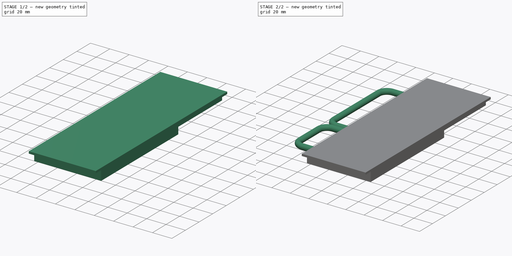
[diagram: build sequence overview — one tinted view per stage of 2, left to right]
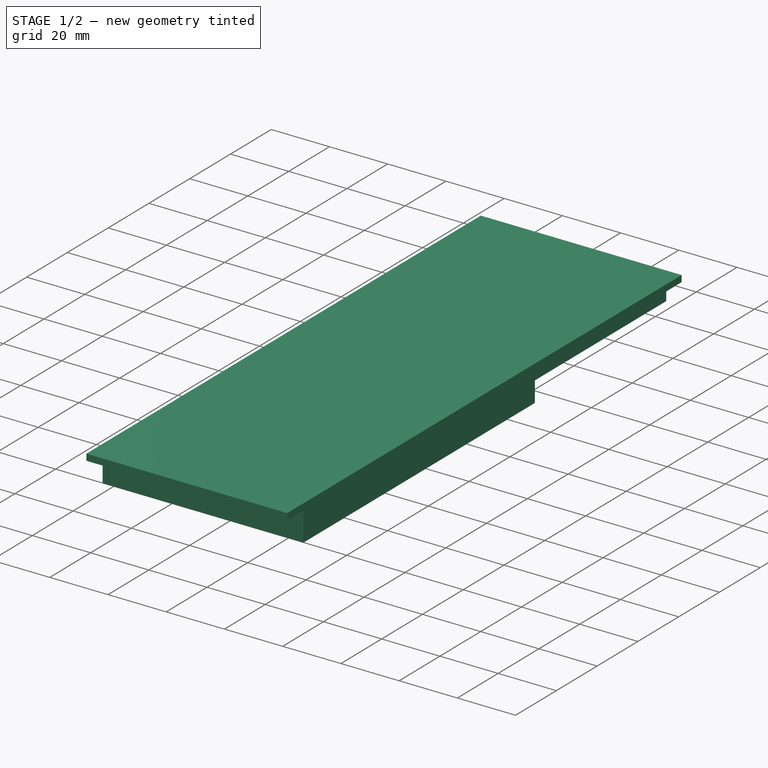
[diagram: stage 1 of 2 — iso view after this stage's code; geometry added in this stage tinted green]
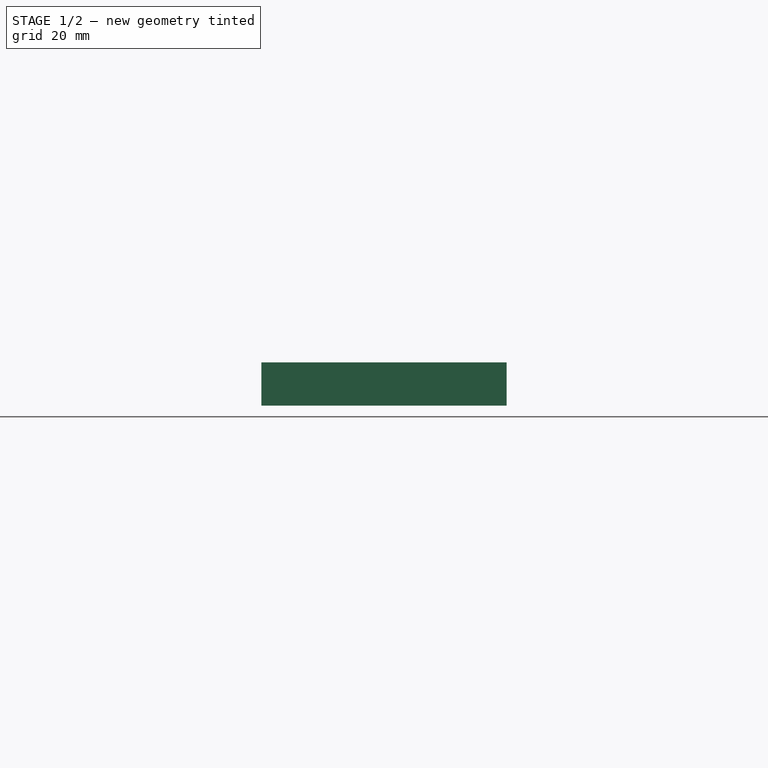
[diagram: stage 1 of 2 — front view after this stage's code; geometry added in this stage tinted green]
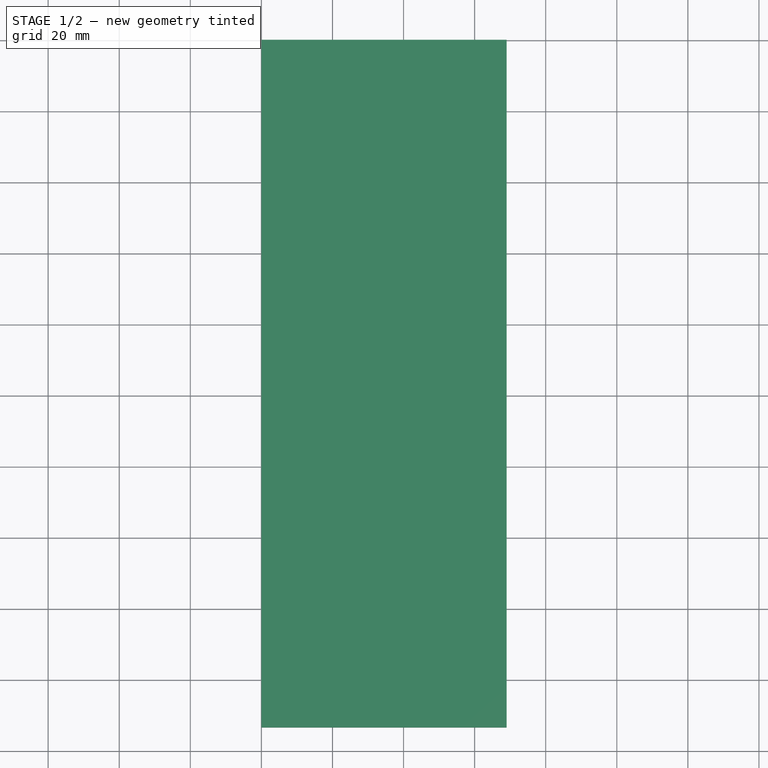
[diagram: stage 1 of 2 — top view after this stage's code; geometry added in this stage tinted green]
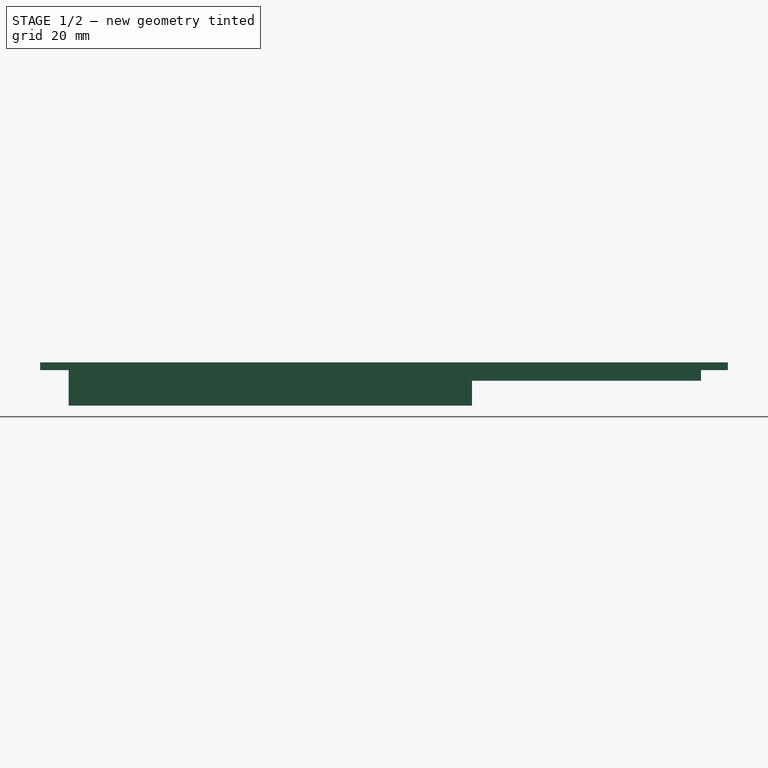
[diagram: stage 1 of 2 — right view after this stage's code; geometry added in this stage tinted green]
FCSTD DOCUMENT  (FreeCAD 0.21R33771 (Git))
Label: gpu-iron
License: All rights reserved
LicenseURL: http://en.wikipedia.org/wiki/All_rights_reserved
objects: Sketcher::SketchObject×3, PartDesign::Plane×2, PartDesign::Pad×1, PartDesign::AdditivePipe×1, PartDesign::Body×1
note: 10 computed .brp shape members not serialized (recipe doc carries the construction recipe); baked Part::Feature solids carry a one-line shape summary decoded from their .brp

FEATURE [Sketcher::SketchObject] Sketch
  FullyConstrained = true
  MapMode = 5
  Placement = pos=(0,0,0) rot=(0.57735,0.57735,0.57735;2.0944rad)
  Support = -> [YZ_Plane]
  sketch-geometry (15):
    g0: LineSegment StartX=-193.5 StartY=2.2 StartZ=0 EndX=0 EndY=2.2 EndZ=0
    g1: LineSegment StartX=0 StartY=2.2 StartZ=0 EndX=0 EndY=0 EndZ=0
    g2: LineSegment StartX=0 StartY=0 StartZ=0 EndX=-193.5 EndY=0 EndZ=0
    g3: LineSegment StartX=-193.5 StartY=0 StartZ=0 EndX=-193.5 EndY=2.2 EndZ=0
    g4: LineSegment StartX=-185.5 StartY=0 StartZ=0 EndX=-72 EndY=0 EndZ=0
    g5: LineSegment StartX=-72 StartY=0 StartZ=0 EndX=-72 EndY=-10 EndZ=0
    g6: LineSegment StartX=-72 StartY=-10 StartZ=0 EndX=-185.5 EndY=-10 EndZ=0
    g7: LineSegment StartX=-185.5 StartY=-10 StartZ=0 EndX=-185.5 EndY=0 EndZ=0
    g8: LineSegment StartX=-72 StartY=-3 StartZ=0 EndX=-7.55 EndY=-3 EndZ=0
    g9: LineSegment StartX=-7.55 StartY=-3 StartZ=0 EndX=-7.55 EndY=0 EndZ=0
    g10: LineSegment StartX=-7.55 StartY=0 StartZ=0 EndX=-72 EndY=0 EndZ=0
    g11: LineSegment StartX=-72 StartY=0 StartZ=0 EndX=-72 EndY=-3 EndZ=0
    g12: LineSegment StartX=-193.5 StartY=0 StartZ=0 EndX=-185.5 EndY=0 EndZ=0
    g13: LineSegment StartX=-72 StartY=-10 StartZ=0 EndX=-72 EndY=-3 EndZ=0
    g14: LineSegment StartX=-7.55 StartY=0 StartZ=0 EndX=0 EndY=0 EndZ=0
  constraints (42):
    c: Coincident(g0,g1)
    c: Coincident(g1,g2)
    c: Coincident(g2,g3)
    c: Coincident(g3,g0)
    c: Horizontal(g0)
    c: Horizontal(g2)
    c: Vertical(g1)
    c: Vertical(g3)
    c: DistanceY(g1,g1) = 2.2
    c: DistanceX(g0,g0) = 193.5
    c: DistanceX(g-1,g1) = 0
    c: DistanceY(g-1,g1) = 0
    c: Coincident(g4,g5)
    c: Coincident(g5,g6)
    c: Coincident(g6,g7)
    c: Coincident(g7,g4)
    c: Horizontal(g4)
    c: Horizontal(g6)
    c: Vertical(g5)
    c: Vertical(g7)
    c: PointOnObject(g4,g2)
    c: Coincident(g8,g9)
    c: Coincident(g9,g10)
    c: Coincident(g10,g11)
    c: Coincident(g11,g8)
    c: Horizontal(g8)
    c: Horizontal(g10)
    c: Vertical(g9)
    c: Vertical(g11)
    c: PointOnObject(g8,g5)
    c: PointOnObject(g9,g2)
    c: DistanceX(g9,g1) = 7.55
    c: DistanceX(g6,g6) = 113.5
    c: DistanceX(g3,g7) = 8
    c: DistanceY(g6,g0) = 12.2
    c: DistanceY(g8,g0) = 5.2
    c: Coincident(g12,g3)
    c: Coincident(g12,g7)
    c: Coincident(g13,g6)
    c: Coincident(g13,g8)
    c: Coincident(g14,g9)
    c: Coincident(g14,g1)
FEATURE [PartDesign::Pad] Pad
  Direction = (1,-2e-16,3e-16)
  Length = 69
  Length2 = 10
  Placement = pos=(0,0,0) rot=(1,1,1;2.0944rad)
  Profile = -> Sketch
  ReferenceAxis = -> Sketch [N_Axis]
  Type = 0
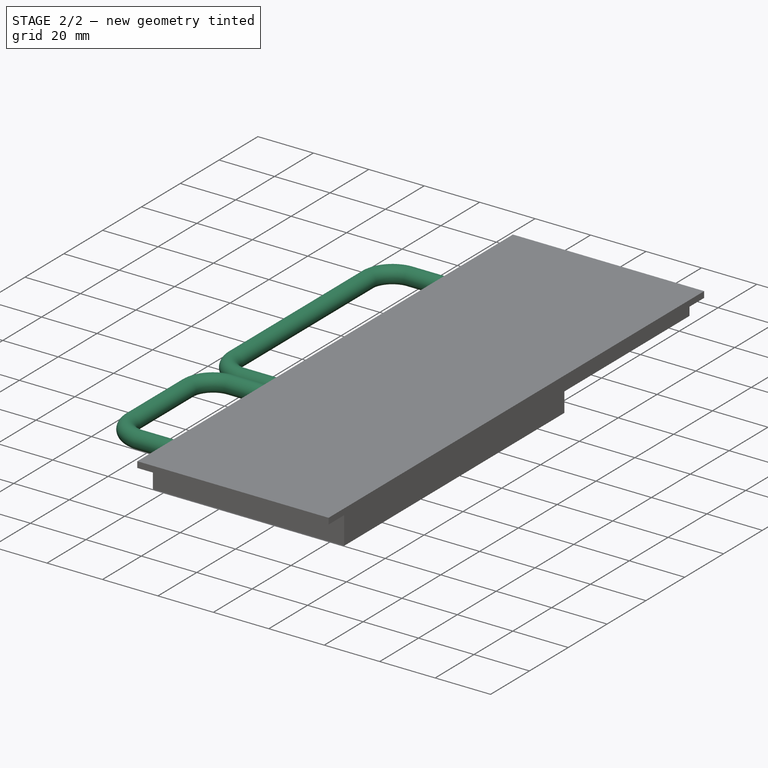
[diagram: stage 2 of 2 — iso view after this stage's code; geometry added in this stage tinted green]
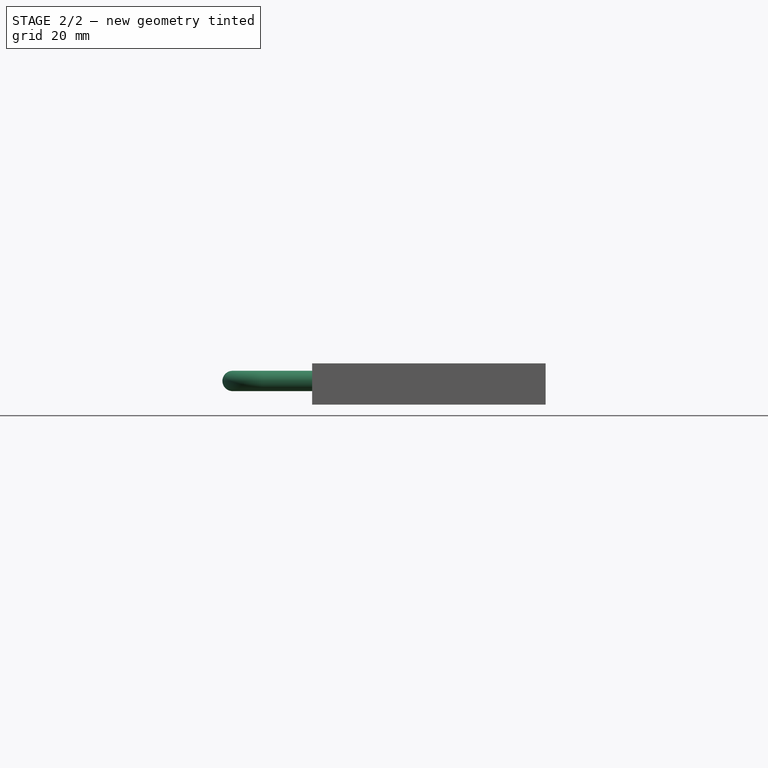
[diagram: stage 2 of 2 — front view after this stage's code; geometry added in this stage tinted green]
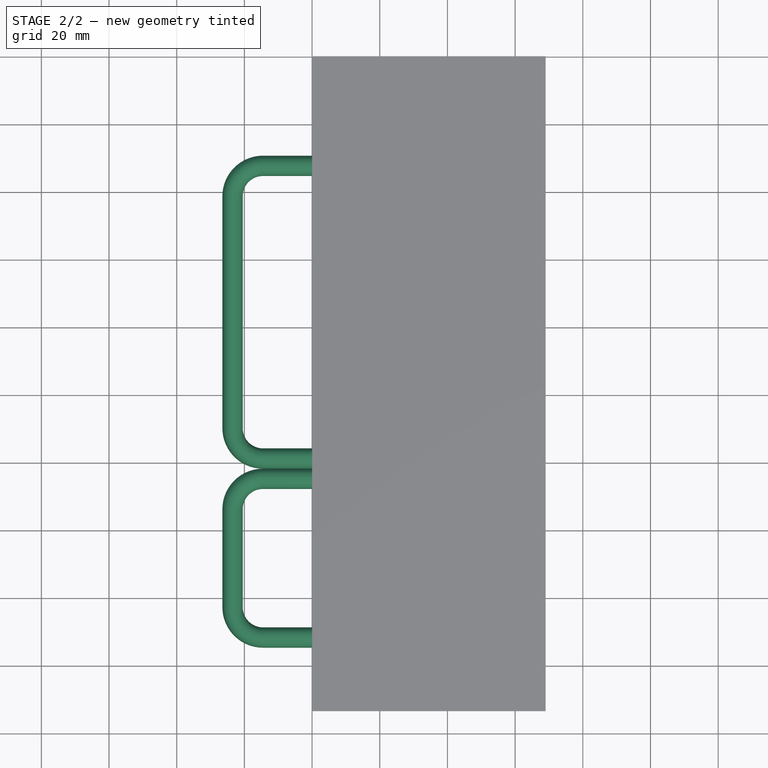
[diagram: stage 2 of 2 — top view after this stage's code; geometry added in this stage tinted green]
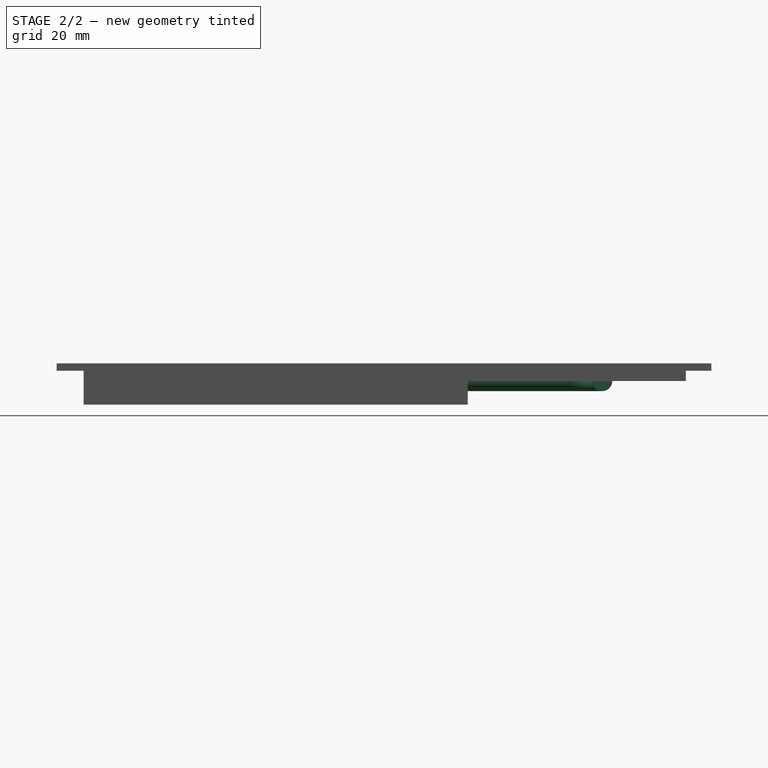
[diagram: stage 2 of 2 — right view after this stage's code; geometry added in this stage tinted green]
FEATURE [PartDesign::Plane] DatumPlane
  AttachmentOffset = pos=(0,0,-5) rot=(0,0,1;0rad)
  Length = 247.391
  MapMode = 5
  Placement = pos=(1.1e-15,-1.6e-15,-2.8) rot=(0,0,-1;1.5708rad)
  ResizeMode = 0
  Support = -> [Pad]
  Width = 124.391
FEATURE [Sketcher::SketchObject] Sketch001
  FullyConstrained = false
  MapMode = 5
  Placement = pos=(1.1e-15,-1.6e-15,-2.8) rot=(0,0,-1;1.5708rad)
  Support = -> [DatumPlane]
  sketch-geometry (27):
    g0: LineSegment StartX=171.7 StartY=0 StartZ=0 EndX=171.7 EndY=-14.5 EndZ=0
    g1: LineSegment StartX=162.7 StartY=-23.5 StartZ=0 EndX=133.8 EndY=-23.5 EndZ=0
    g2: LineSegment StartX=118.8 StartY=1.6e-15 StartZ=0 EndX=118.8 EndY=-14.5 EndZ=0
    g3: LineSegment StartX=109.8 StartY=-23.5 StartZ=0 EndX=41.3 EndY=-23.5 EndZ=0
    g4: LineSegment StartX=32.3 StartY=-14.5 StartZ=0 EndX=32.3 EndY=1.8e-15 EndZ=0
    g5: LineSegment StartX=124.8 StartY=-14.5 StartZ=0 EndX=124.8 EndY=1.8e-15 EndZ=0
    g6: LineSegment StartX=0 StartY=69 StartZ=0 EndX=193.5 EndY=69 EndZ=0
    g7: LineSegment StartX=193.5 StartY=69 StartZ=0 EndX=193.5 EndY=0 EndZ=0
    g8: LineSegment StartX=193.5 StartY=0 StartZ=0 EndX=0 EndY=0 EndZ=0
    g9: LineSegment StartX=0 StartY=0 StartZ=0 EndX=0 EndY=69 EndZ=0
    g10: ArcOfCircle CenterX=41.3 CenterY=-14.5 CenterZ=0 NormalX=0 NormalY=0 NormalZ=1 AngleXU=0 Radius=9 StartAngle=3.14159 EndAngle=4.71239
    g11: ArcOfCircle CenterX=109.8 CenterY=-14.5 CenterZ=0 NormalX=0 NormalY=0 NormalZ=1 AngleXU=0 Radius=9 StartAngle=4.71239 EndAngle=6.28319
    g12: ArcOfCircle CenterX=133.8 CenterY=-14.5 CenterZ=0 NormalX=0 NormalY=0 NormalZ=1 AngleXU=0 Radius=9 StartAngle=3.14159 EndAngle=4.71239
    g13: ArcOfCircle CenterX=162.7 CenterY=-14.5 CenterZ=0 NormalX=0 NormalY=0 NormalZ=1 AngleXU=0 Radius=9 StartAngle=4.71239 EndAngle=6.28319
    g14: LineSegment StartX=118.8 StartY=1.6e-15 StartZ=0 EndX=118.8 EndY=8.05997 EndZ=0
    g15: LineSegment StartX=111.242 StartY=15.6177 StartZ=0 EndX=110.43 EndY=15.6177 EndZ=0
    g16: LineSegment StartX=103.659 StartY=22.3884 StartZ=0 EndX=103.659 EndY=25.4397 EndZ=0
    g17: LineSegment StartX=110.65 StartY=32.4313 StartZ=0 EndX=137.307 EndY=32.4313 EndZ=0
    g18: LineSegment StartX=144.408 StartY=25.3299 StartZ=0 EndX=144.408 EndY=21.4702 EndZ=0
    g19: LineSegment StartX=138.391 StartY=15.4529 StartZ=0 EndX=134.766 EndY=15.4529 EndZ=0
    g20: LineSegment StartX=124.8 StartY=5.48692 StartZ=0 EndX=124.8 EndY=1.8e-15 EndZ=0
    g21: ArcOfCircle CenterX=111.242 CenterY=8.05997 CenterZ=0 NormalX=0 NormalY=0 NormalZ=1 AngleXU=0 Radius=7.55771 StartAngle=1e-16 EndAngle=1.5708
    g22: ArcOfCircle CenterX=110.43 CenterY=22.3884 CenterZ=0 NormalX=0 NormalY=0 NormalZ=1 AngleXU=0 Radius=6.77074 StartAngle=3.14159 EndAngle=4.71239
    g23: ArcOfCircle CenterX=110.65 CenterY=25.4397 CenterZ=0 NormalX=0 NormalY=0 NormalZ=1 AngleXU=0 Radius=6.99163 StartAngle=1.5708 EndAngle=3.14159
    g24: ArcOfCircle CenterX=137.307 CenterY=25.3299 CenterZ=0 NormalX=0 NormalY=0 NormalZ=1 AngleXU=0 Radius=7.1014 StartAngle=0 EndAngle=1.5708
    g25: ArcOfCircle CenterX=138.391 CenterY=21.4702 CenterZ=0 NormalX=0 NormalY=0 NormalZ=1 AngleXU=0 Radius=6.01726 StartAngle=4.71239 EndAngle=6.28319
    g26: ArcOfCircle CenterX=134.766 CenterY=5.48692 CenterZ=0 NormalX=0 NormalY=0 NormalZ=1 AngleXU=0 Radius=9.96602 StartAngle=1.5708 EndAngle=3.14159
  constraints (61):
    c: Vertical(g0)
    c: Horizontal(g1)
    c: Vertical(g2)
    c: Horizontal(g3)
    c: Vertical(g4)
    c: Vertical(g5)
    c: Coincident(g6,g7)
    c: Coincident(g7,g8)
    c: Coincident(g8,g9)
    c: Coincident(g9,g6)
    c: Horizontal(g6)
    c: Horizontal(g8)
    c: Vertical(g7)
    c: Vertical(g9)
    c: PointOnObject(g6,g-2)
    c: PointOnObject(g7,g-1)
    c: DistanceY(g7,g7) = 69
    c: DistanceX(g6,g6) = 193.5
    c: DistanceX(g0,g7) = 21.8
    c: DistanceX(g2,g5) = 6
    c: Tangent(g4,g10) = 1.5708
    c: Tangent(g3,g10) = 1.5708
    c: DistanceX(g4,g2) = 86.5
    c: Diameter(g10) = 18
    c: DistanceY(g3,g2) = 23.5
    c: DistanceY(g4,g2) = 0
    c: Tangent(g2,g11) = 1.5708
    c: Tangent(g3,g11) = 1.5708
    c: Diameter(g11) = 18
    c: DistanceY(g2,g5) = 0
    c: DistanceX(g5,g0) = 46.9
    c: DistanceY(g7,g0) = 0
    c: Tangent(g5,g12) = 1.5708
    c: Tangent(g1,g12) = 1.5708
    c: Tangent(g0,g13) = 1.5708
    c: Tangent(g1,g13) = 1.5708
    c: Diameter(g12) = 18
    c: Diameter(g13) = 18
    c: DistanceY(g5,g2) = 0
    c: DistanceY(g0,g0) = 14.5
    c: Coincident(g14,g2)
    c: Vertical(g14)
    c: Horizontal(g15)
    c: Vertical(g16)
    c: Horizontal(g17)
    c: Vertical(g18)
    c: Horizontal(g19)
    c: Coincident(g20,g5)
    c: Vertical(g20)
    c: Tangent(g15,g21) = -1.5708
    c: Tangent(g14,g21) = -1.5708
    c: Tangent(g15,g22) = 1.5708
    c: Tangent(g16,g22) = 1.5708
    c: Tangent(g16,g23) = 1.5708
    c: Tangent(g17,g23) = 1.5708
    c: Tangent(g17,g24) = 1.5708
    c: Tangent(g18,g24) = 1.5708
    c: Tangent(g18,g25) = 1.5708
    c: Tangent(g19,g25) = 1.5708
    c: Tangent(g19,g26) = -1.5708
    c: Tangent(g20,g26) = -1.5708
FEATURE [PartDesign::Plane] DatumPlane001
  Length = 239.405
  MapMode = 5
  Placement = pos=(2.23e-14,0,0) rot=(0.57735,0.57735,-0.57735;4.18879rad)
  ResizeMode = 0
  Support = -> [Pad]
  Width = 70.9045
FEATURE [Sketcher::SketchObject] Sketch002
  FullyConstrained = true
  MapMode = 5
  Placement = pos=(2.23e-14,0,0) rot=(-0.57735,-0.57735,0.57735;2.0944rad)
  Support = -> [DatumPlane001]
  sketch-geometry (1):
    g0: Circle CenterX=-32.3 CenterY=3 CenterZ=0 NormalX=0 NormalY=0 NormalZ=1 AngleXU=0 Radius=3
  constraints (3):
    c: Diameter(g0) = 6
    c: DistanceX(g0,g-1) = 32.3
    c: DistanceY(g-1,g0) = 3
FEATURE [PartDesign::AdditivePipe] AdditivePipe
  AuxilleryCurvelinear = true
  AuxillerySpineTangent = false
  BaseFeature = -> Pad
  Binormal = (0,0,0)
  Mode = 0
  Placement = pos=(0,0,0) rot=(1,1,1;2.0944rad)
  Profile = -> Sketch002
  Spine = -> Sketch001
  SpineTangent = false
  Transformation = 0
  Transition = 0
FEATURE [PartDesign::Body] Body  label="实体"
  Group = -> [Sketch,Pad,DatumPlane,Sketch001,DatumPlane001,Sketch002,AdditivePipe]
  Origin = -> Origin
  Tip = -> AdditivePipe
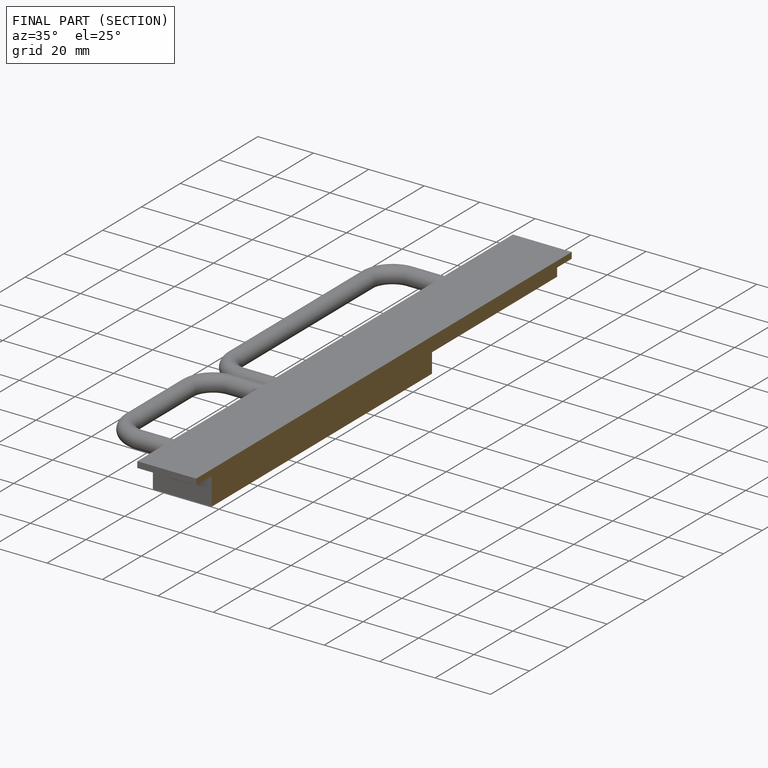
[diagram: finished part — half-section view (interior)]
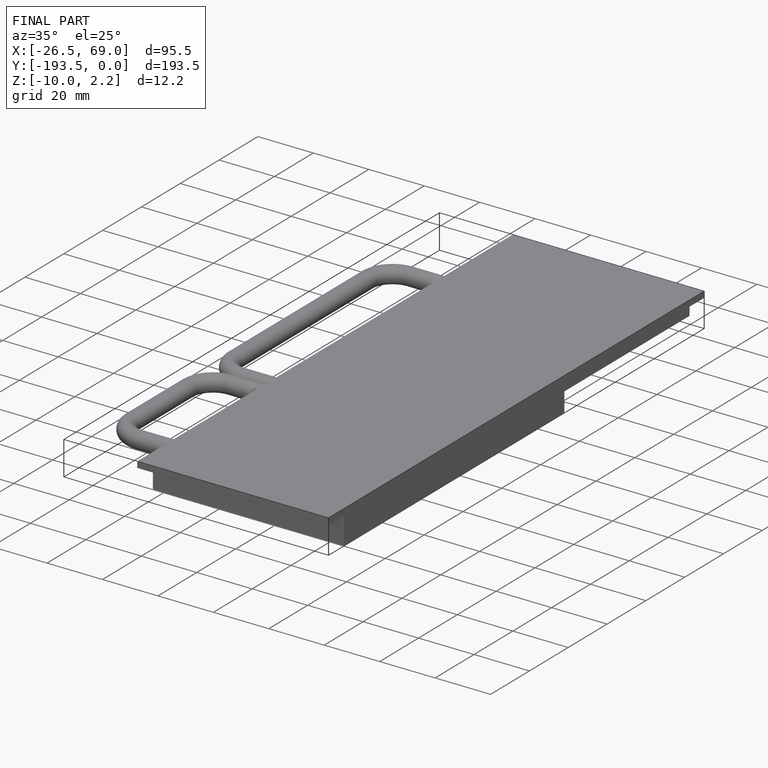
[diagram: finished part — iso view with bounding-box wireframe]
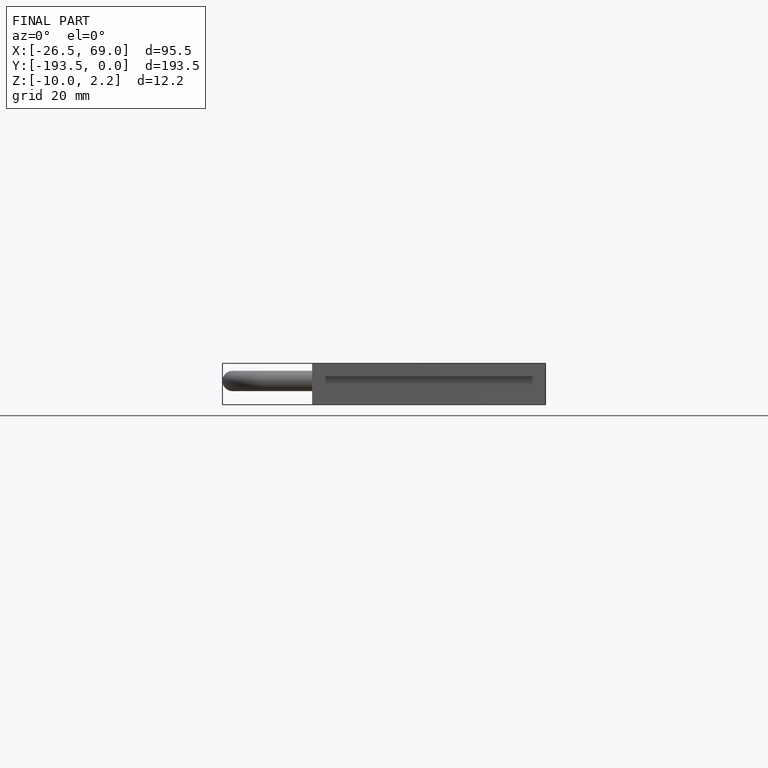
[diagram: finished part — front view with bounding-box wireframe]
